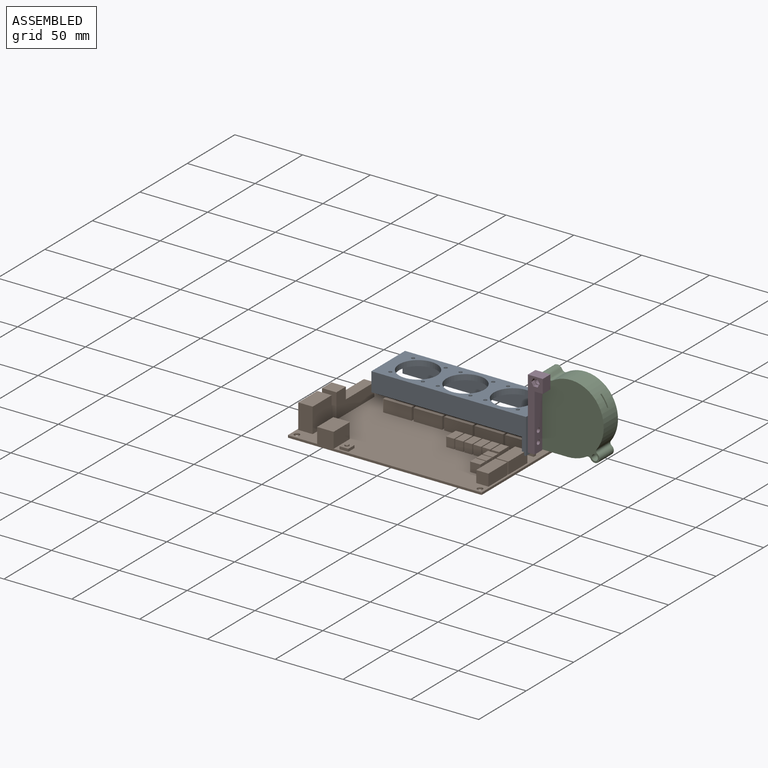
[diagram: assembled view]
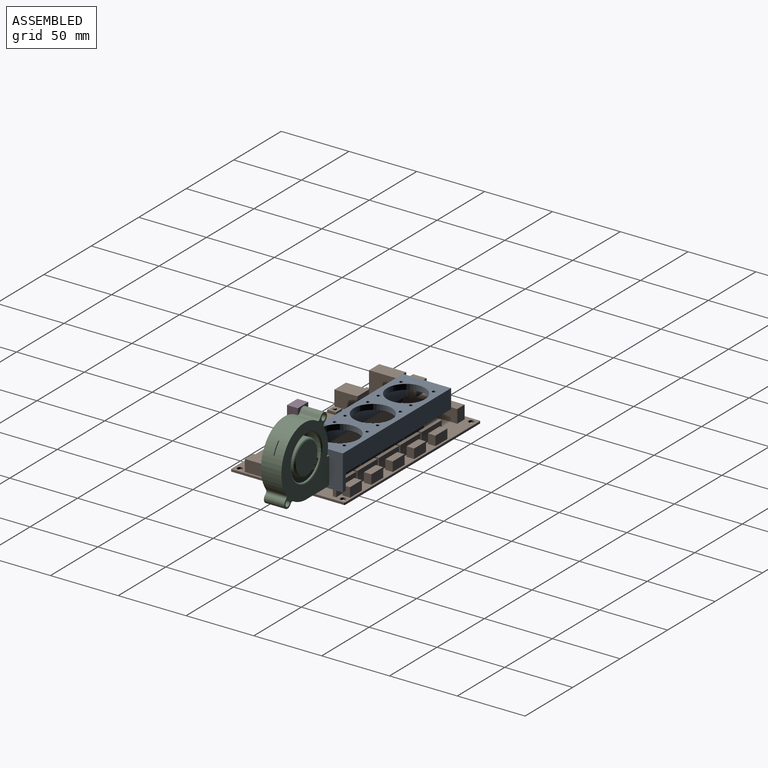
[diagram: assembled view, second angle]
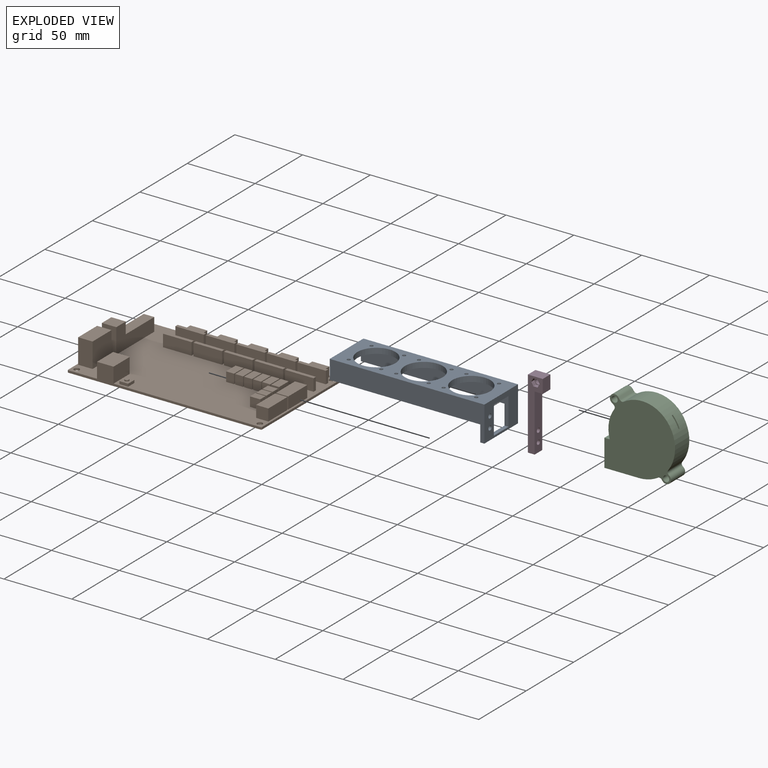
[diagram: exploded view]
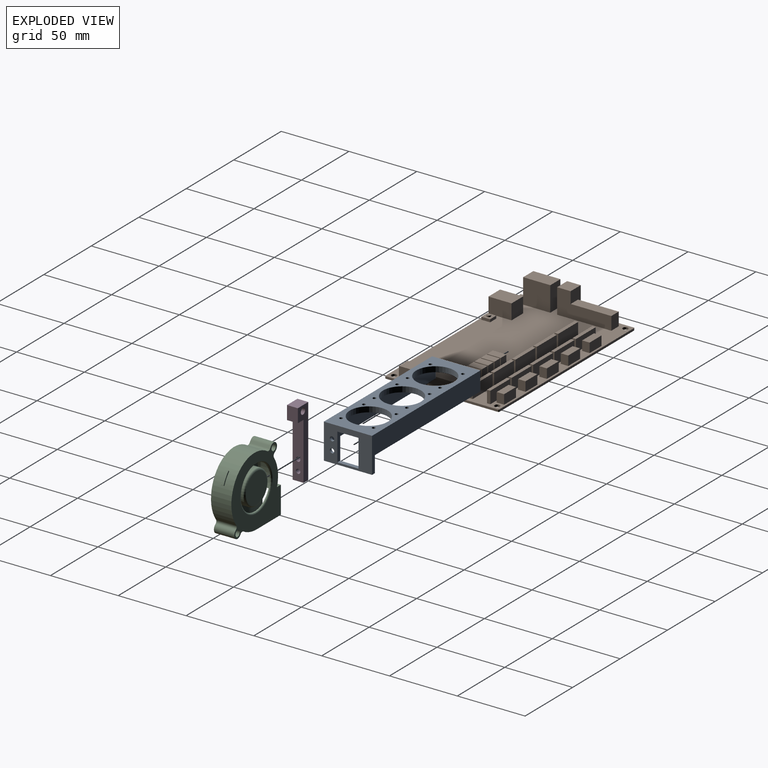
[diagram: exploded view, second angle]
ASSEMBLY  parts=4 mates=2
PART A: 46 faces, bbox 114x35.5x26 mm
  f0: cylinder r=1.65mm len=3.3mm, axis (-1,0,0), area 20.7mm2, adj f8,f45
  f1: cylinder r=1.65mm len=3.3mm, axis (-1,0,0), area 20.7mm2, adj f8,f38
  f2: plane 114x30mm, normal (0,0,-1), area 1470.3mm2, adj f3,f4,f8,f9,f10,f11,f12,f13
  f3: plane 35.5x22mm, normal (-1,0,0), area 359.6mm2, adj f2,f6,f7,f24,f25,f26,f27,f28
  f4: plane 35.5x14mm, normal (-1,0,0), area 197mm2, adj f2,f5,f6,f7,f25,f26,f27,f28
  f5: plane 114x35.5mm, normal (0,0,1), area 2140.8mm2, adj f4,f6,f7,f8,f9,f10,f11,f12
  f6: plane 114x26mm, normal (0,-1,0), area 1632mm2, adj f3,f4,f5,f8,f24,f26
  f7: plane 114x26mm, normal (0,1,0), area 1632mm2, adj f3,f4,f5,f8,f24,f28
  f8: plane 35.5x26mm, normal (1,0,0), area 588.1mm2, adj f0,f1,f2,f5,f6,f7,f24,f29
  f9: cylinder r=14mm len=28mm, axis (0,0,1), area 351.9mm2, adj f2,f5
  f10: cylinder r=1.25mm len=4mm, axis (0,0,1), area 31.4mm2, adj f2,f5
  f11: cylinder r=1.25mm len=4mm, axis (0,0,1), area 31.4mm2, adj f2,f5
  f12: cylinder r=1.25mm len=4mm, axis (0,0,1), area 31.4mm2, adj f2,f5
  f13: cylinder r=1.25mm len=4mm, axis (0,0,1), area 31.4mm2, adj f2,f5
  f14: cylinder r=1.25mm len=4mm, axis (0,0,1), area 31.4mm2, adj f2,f5
  f15: cylinder r=1.25mm len=4mm, axis (0,0,1), area 31.4mm2, adj f2,f5
  f16: cylinder r=14mm len=28mm, axis (0,0,1), area 351.9mm2, adj f2,f5
  f17: cylinder r=14mm len=28mm, axis (0,0,1), area 351.9mm2, adj f2,f5
  f18: cylinder r=1.25mm len=4mm, axis (0,0,1), area 31.4mm2, adj f2,f5
  f19: cylinder r=1.25mm len=4mm, axis (0,0,1), area 31.4mm2, adj f2,f5
  f20: cylinder r=1.25mm len=4mm, axis (0,0,1), area 31.4mm2, adj f2,f5
  f21: cylinder r=1.25mm len=4mm, axis (0,0,1), area 31.4mm2, adj f2,f5
  f22: cylinder r=1.25mm len=4mm, axis (0,0,1), area 31.4mm2, adj f2,f5
  f23: cylinder r=1.25mm len=4mm, axis (0,0,1), area 31.4mm2, adj f2,f5
  f24: plane 35.5x3mm, normal (0,0,-1), area 106.5mm2, adj f3,f6,f7,f8
  f25: plane 111x10mm, normal (0,1,0), area 1110mm2, adj f2,f3,f4,f26
  f26: plane 111x2.75mm, normal (0,0,-1), area 305.3mm2, adj f3,f4,f6,f25
  f27: plane 111x10mm, normal (0,-1,0), area 1110mm2, adj f2,f3,f4,f28
  f28: plane 111x2.75mm, normal (0,0,-1), area 305.2mm2, adj f3,f4,f7,f27
  f29: plane 20.5x3mm, normal (0,-1,0), area 61.5mm2, adj f2,f3,f8,f30
  f30: plane 15.5x3mm, normal (0,0,1), area 46.5mm2, adj f3,f8,f29,f31
  f31: plane 20.5x3mm, normal (0,1,0), area 61.5mm2, adj f2,f3,f8,f30
  f32: plane 2.65x1.53mm, normal (0,-0.87,0.5), area 3.1mm2, adj f3,f33,f37,f38
  f33: plane 3.06x1mm, normal (0,0,1), area 3.1mm2, adj f3,f32,f34,f38
  f34: plane 2.65x1.53mm, normal (0,0.87,0.5), area 3.1mm2, adj f3,f33,f35,f38
  f35: plane 2.65x1.53mm, normal (0,0.87,-0.5), area 3.1mm2, adj f3,f34,f36,f38
  f36: plane 3.06x1mm, normal (0,0,-1), area 3.1mm2, adj f3,f35,f37,f38
  f37: plane 2.65x1.53mm, normal (0,-0.87,-0.5), area 3.1mm2, adj f3,f32,f36,f38
  f38: plane 6.12x5.3mm, normal (-1,0,0), area 15.8mm2, adj f1,f32,f33,f34,f35,f36,f37
  f39: plane 2.65x1.53mm, normal (0,-0.87,0.5), area 3.1mm2, adj f3,f40,f44,f45
  f40: plane 3.06x1mm, normal (0,0,1), area 3.1mm2, adj f3,f39,f41,f45
  f41: plane 2.65x1.53mm, normal (0,0.87,0.5), area 3.1mm2, adj f3,f40,f42,f45
  f42: plane 2.65x1.53mm, normal (0,0.87,-0.5), area 3.1mm2, adj f3,f41,f43,f45
  f43: plane 3.06x1mm, normal (0,0,-1), area 3.1mm2, adj f3,f42,f44,f45
  f44: plane 2.65x1.53mm, normal (0,-0.87,-0.5), area 3.1mm2, adj f3,f39,f43,f45
  f45: plane 6.12x5.3mm, normal (-1,0,0), area 15.8mm2, adj f0,f39,f40,f41,f42,f43,f44
PART B: 168 faces, bbox 143x84x19.9 mm
  f0: plane 143x84mm, normal (0,0,1), area 9452.7mm2, adj f1,f6,f8,f9,f10,f11,f12,f13
  f1: plane 9x2.5mm, normal (-1,0,0), area 22.5mm2, adj f0,f39,f42,f118
  f2: plane 21x2.5mm, normal (0,0,1), area 52.5mm2, adj f8,f40,f41,f117
  f3: plane 21x2.5mm, normal (0,0,1), area 52.5mm2, adj f9,f10,f45,f115
  f4: plane 21x2.5mm, normal (0,0,1), area 52.5mm2, adj f11,f12,f50,f113
  f5: plane 21x2.5mm, normal (0,0,1), area 52.5mm2, adj f13,f14,f55,f111
  f6: plane 9x2.5mm, normal (1,0,0), area 22.5mm2, adj f0,f7,f60,f109
  f7: plane 21x2.5mm, normal (0,0,1), area 52.5mm2, adj f6,f15,f60,f109
  f8: plane 9x2.5mm, normal (1,0,0), area 22.5mm2, adj f0,f2,f41,f117
  f9: plane 9x2.5mm, normal (-1,0,0), area 22.5mm2, adj f0,f3,f45,f115
  f10: plane 9x2.5mm, normal (1,0,0), area 22.5mm2, adj f0,f3,f45,f115
  f11: plane 9x2.5mm, normal (-1,0,0), area 22.5mm2, adj f0,f4,f50,f113
  f12: plane 9x2.5mm, normal (1,0,0), area 22.5mm2, adj f0,f4,f50,f113
  f13: plane 9x2.5mm, normal (-1,0,0), area 22.5mm2, adj f0,f5,f55,f111
  f14: plane 9x2.5mm, normal (1,0,0), area 22.5mm2, adj f0,f5,f55,f111
  f15: plane 9x2.5mm, normal (-1,0,0), area 22.5mm2, adj f0,f7,f60,f109
  f16: plane 141.8x12.92mm, normal (0,-1,0), area 367.6mm2, adj f0,f24,f88,f89,f91,f164,f167
  f17: plane 82.8x1.62mm, normal (1,0,0), area 134.1mm2, adj f0,f24,f164,f165
  f18: plane 141.8x1.62mm, normal (0,1,0), area 229.7mm2, adj f0,f24,f165,f166
  f19: cylinder r=2mm len=4mm, axis (0,0,-1), area 20.4mm2, adj f0,f24
  f20: cylinder r=2mm len=4mm, axis (0,0,-1), area 20.4mm2, adj f0,f24
  f21: cylinder r=2mm len=4mm, axis (0,0,-1), area 20.4mm2, adj f0,f24
  f22: plane 82.8x1.62mm, normal (-1,0,0), area 134.1mm2, adj f0,f24,f166,f167
  f23: cylinder r=2mm len=4mm, axis (0,0,-1), area 20.4mm2, adj f0,f24
  f24: plane 143x84mm, normal (0,0,-1), area 11961.4mm2, adj f16,f17,f18,f19,f20,f21,f22,f23
  f25: plane 20x18.3mm, normal (1,0,0), area 366mm2, adj f0,f26,f28,f29
  f26: plane 18.3x10.62mm, normal (0,1,0), area 194.3mm2, adj f0,f25,f27,f29
  f27: plane 20x18.3mm, normal (-1,0,0), area 366mm2, adj f0,f26,f28,f29
  f28: plane 18.3x10.62mm, normal (0,-1,0), area 194.3mm2, adj f0,f25,f27,f29
  f29: plane 20x10.62mm, normal (0,0,1), area 212.4mm2, adj f25,f26,f27,f28
  f30: plane 18.3x10.62mm, normal (0,-1,0), area 194.3mm2, adj f0,f31,f33,f34
  f31: plane 40x18.3mm, normal (1,0,0), area 477mm2, adj f0,f30,f32,f34,f35,f37
  f32: plane 18.3x10.62mm, normal (0,1,0), area 118.4mm2, adj f0,f31,f33,f34,f36,f37
  f33: plane 18.3x10mm, normal (-1,0,0), area 183mm2, adj f0,f30,f32,f34
  f34: plane 10.62x10mm, normal (0,0,1), area 106.2mm2, adj f30,f31,f32,f33
  f35: plane 9.8x7.75mm, normal (0,1,0), area 76mm2, adj f0,f31,f36,f37
  f36: plane 30x9.8mm, normal (-1,0,0), area 294mm2, adj f0,f32,f35,f37
  f37: plane 30x7.75mm, normal (0,0,1), area 232.5mm2, adj f31,f32,f35,f36
  f38: plane 9x2.5mm, normal (1,0,0), area 22.5mm2, adj f0,f39,f42,f118
  f39: plane 21x9mm, normal (0,1,0), area 189mm2, adj f0,f1,f38,f42
  f40: plane 9x2.5mm, normal (-1,0,0), area 22.5mm2, adj f0,f2,f41,f117
  f41: plane 21x9mm, normal (0,-1,0), area 189mm2, adj f0,f2,f8,f40
  f42: plane 21x2.5mm, normal (0,0,1), area 52.5mm2, adj f1,f38,f39,f118
  f43: plane 21x9mm, normal (0,1,0), area 189mm2, adj f0,f44,f46,f47
  f44: plane 9x2.5mm, normal (-1,0,0), area 22.5mm2, adj f0,f43,f47,f116
  f45: plane 21x9mm, normal (0,-1,0), area 189mm2, adj f0,f3,f9,f10
  f46: plane 9x2.5mm, normal (1,0,0), area 22.5mm2, adj f0,f43,f47,f116
  f47: plane 21x2.5mm, normal (0,0,1), area 52.5mm2, adj f43,f44,f46,f116
  f48: plane 21x9mm, normal (0,1,0), area 189mm2, adj f0,f49,f51,f52
  f49: plane 9x2.5mm, normal (-1,0,0), area 22.5mm2, adj f0,f48,f52,f114
  f50: plane 21x9mm, normal (0,-1,0), area 189mm2, adj f0,f4,f11,f12
  f51: plane 9x2.5mm, normal (1,0,0), area 22.5mm2, adj f0,f48,f52,f114
  f52: plane 21x2.5mm, normal (0,0,1), area 52.5mm2, adj f48,f49,f51,f114
  f53: plane 21x9mm, normal (0,1,0), area 189mm2, adj f0,f54,f56,f57
  f54: plane 9x2.5mm, normal (-1,0,0), area 22.5mm2, adj f0,f53,f57,f112
  f55: plane 21x9mm, normal (0,-1,0), area 189mm2, adj f0,f5,f13,f14
  f56: plane 9x2.5mm, normal (1,0,0), area 22.5mm2, adj f0,f53,f57,f112
  f57: plane 21x2.5mm, normal (0,0,1), area 52.5mm2, adj f53,f54,f56,f112
  f58: plane 21x9mm, normal (0,1,0), area 189mm2, adj f0,f59,f61,f62
  f59: plane 9x2.5mm, normal (-1,0,0), area 22.5mm2, adj f0,f58,f62,f110
  f60: plane 21x9mm, normal (0,-1,0), area 189mm2, adj f0,f6,f7,f15
  f61: plane 9x2.5mm, normal (1,0,0), area 22.5mm2, adj f0,f58,f62,f110
  f62: plane 21x2.5mm, normal (0,0,1), area 52.5mm2, adj f58,f59,f61,f110
  f63: plane 7x5.5mm, normal (-1,0,0), area 38.5mm2, adj f0,f64,f66,f67
  f64: plane 12.5x7mm, normal (0,-1,0), area 87.5mm2, adj f0,f63,f65,f67
  f65: plane 7x5.5mm, normal (1,0,0), area 38.5mm2, adj f0,f64,f66,f67
  f66: plane 12.5x7mm, normal (0,1,0), area 87.5mm2, adj f0,f63,f65,f67
  f67: plane 12.5x5.5mm, normal (0,0,1), area 68.7mm2, adj f63,f64,f65,f66
  f68: plane 7x5.5mm, normal (1,0,0), area 38.5mm2, adj f0,f69,f71,f72
  f69: plane 12.5x7mm, normal (0,1,0), area 87.5mm2, adj f0,f68,f70,f72
  f70: plane 7x5.5mm, normal (-1,0,0), area 38.5mm2, adj f0,f69,f71,f72
  f71: plane 12.5x7mm, normal (0,-1,0), area 87.5mm2, adj f0,f68,f70,f72
  f72: plane 12.5x5.5mm, normal (0,0,1), area 68.7mm2, adj f68,f69,f70,f71
  f73: plane 12.5x7mm, normal (0,1,0), area 87.5mm2, adj f0,f74,f76,f77
  f74: plane 7x5.5mm, normal (-1,0,0), area 38.5mm2, adj f0,f73,f75,f77
  f75: plane 12.5x7mm, normal (0,-1,0), area 87.5mm2, adj f0,f74,f76,f77
  f76: plane 7x5.5mm, normal (1,0,0), area 38.5mm2, adj f0,f73,f75,f77
  f77: plane 12.5x5.5mm, normal (0,0,1), area 68.7mm2, adj f73,f74,f75,f76
  f78: plane 12.5x7mm, normal (0,-1,0), area 87.5mm2, adj f0,f79,f81,f82
  f79: plane 7x5.5mm, normal (1,0,0), area 38.5mm2, adj f0,f78,f80,f82
  f80: plane 12.5x7mm, normal (0,1,0), area 87.5mm2, adj f0,f79,f81,f82
  f81: plane 7x5.5mm, normal (-1,0,0), area 38.5mm2, adj f0,f78,f80,f82
  f82: plane 12.5x5.5mm, normal (0,0,1), area 68.7mm2, adj f78,f79,f80,f81
  f83: plane 12.5x7mm, normal (0,1,0), area 87.5mm2, adj f0,f84,f86,f87
  f84: plane 7x5.5mm, normal (-1,0,0), area 38.5mm2, adj f0,f83,f85,f87
  f85: plane 12.5x7mm, normal (0,-1,0), area 87.5mm2, adj f0,f84,f86,f87
  f86: plane 7x5.5mm, normal (1,0,0), area 38.5mm2, adj f0,f83,f85,f87
  f87: plane 12.5x5.5mm, normal (0,0,1), area 68.7mm2, adj f83,f84,f85,f86
  f88: plane 17x11.3mm, normal (-1,0,0), area 192.1mm2, adj f0,f16,f90,f91
  f89: plane 17x11.3mm, normal (1,0,0), area 192.1mm2, adj f0,f16,f90,f91
  f90: plane 12.2x11.3mm, normal (0,1,0), area 137.9mm2, adj f0,f88,f89,f91
  f91: plane 17x12.2mm, normal (0,0,1), area 207.4mm2, adj f16,f88,f89,f90
  f92: plane 6.5x2mm, normal (-1,0,0), area 13mm2, adj f0,f93,f95,f96
  f93: plane 6.5x2mm, normal (0,-1,0), area 13mm2, adj f0,f92,f94,f96
  f94: plane 6.5x2mm, normal (1,0,0), area 13mm2, adj f0,f93,f95,f96
  f95: plane 6.5x2mm, normal (0,1,0), area 13mm2, adj f0,f92,f94,f96
  f96: plane 6.5x6.5mm, normal (0,0,1), area 35.2mm2, adj f92,f93,f94,f95,f97
  f97: cylinder r=1.5mm len=3mm, axis (0,0,-1), area 9.4mm2, adj f96,f98
  f98: plane 3x3mm, normal (0,0,1), area 7.1mm2, adj f97
  f99: plane 9x8.66mm, normal (0,1,0), area 77.9mm2, adj f0,f100,f102,f103
  f100: plane 20x8.66mm, normal (-1,0,0), area 173.2mm2, adj f0,f99,f101,f103
  f101: plane 9x8.66mm, normal (0,-1,0), area 77.9mm2, adj f0,f100,f102,f103
  f102: plane 20x8.66mm, normal (1,0,0), area 173.2mm2, adj f0,f99,f101,f103
  f103: plane 20x9mm, normal (0,0,1), area 180mm2, adj f99,f100,f101,f102
  f104: plane 20x8.66mm, normal (1,0,0), area 173.2mm2, adj f0,f105,f107,f108
  f105: plane 9x8.66mm, normal (0,1,0), area 77.9mm2, adj f0,f104,f106,f108
  f106: plane 20x8.66mm, normal (-1,0,0), area 173.2mm2, adj f0,f105,f107,f108
  f107: plane 9x8.66mm, normal (0,-1,0), area 77.9mm2, adj f0,f104,f106,f108
  f108: plane 20x9mm, normal (0,0,1), area 180mm2, adj f104,f105,f106,f107
  f109: plane 21x9mm, normal (0,1,0), area 189mm2, adj f0,f6,f7,f15
  f110: plane 21x9mm, normal (0,-1,0), area 189mm2, adj f0,f59,f61,f62
  f111: plane 21x9mm, normal (0,1,0), area 189mm2, adj f0,f5,f13,f14
  f112: plane 21x9mm, normal (0,-1,0), area 189mm2, adj f0,f54,f56,f57
  f113: plane 21x9mm, normal (0,1,0), area 189mm2, adj f0,f4,f11,f12
  f114: plane 21x9mm, normal (0,-1,0), area 189mm2, adj f0,f49,f51,f52
  f115: plane 21x9mm, normal (0,1,0), area 189mm2, adj f0,f3,f9,f10
  f116: plane 21x9mm, normal (0,-1,0), area 189mm2, adj f0,f44,f46,f47
  f117: plane 21x9mm, normal (0,1,0), area 189mm2, adj f0,f2,f8,f40
  f118: plane 21x9mm, normal (0,-1,0), area 189mm2, adj f0,f1,f38,f42
  f119: plane 7x5.85mm, normal (0,-1,0), area 41mm2, adj f0,f120,f122,f123
  f120: plane 10x7mm, normal (1,0,0), area 70mm2, adj f0,f119,f121,f123
  f121: plane 7x5.85mm, normal (0,1,0), area 41mm2, adj f0,f120,f122,f123
  f122: plane 10x7mm, normal (-1,0,0), area 70mm2, adj f0,f119,f121,f123
  f123: plane 10x5.85mm, normal (0,0,1), area 58.5mm2, adj f119,f120,f121,f122
  f124: plane 10x7mm, normal (-1,0,0), area 70mm2, adj f0,f125,f127,f128
  f125: plane 7x5.85mm, normal (0,-1,0), area 41mm2, adj f0,f124,f126,f128
  f126: plane 10x7mm, normal (1,0,0), area 70mm2, adj f0,f125,f127,f128
  f127: plane 7x5.85mm, normal (0,1,0), area 41mm2, adj f0,f124,f126,f128
  f128: plane 10x5.85mm, normal (0,0,1), area 58.5mm2, adj f124,f125,f126,f127
  f129: plane 10x7mm, normal (-1,0,0), area 70mm2, adj f0,f130,f132,f133
  f130: plane 7x5.85mm, normal (0,-1,0), area 41mm2, adj f0,f129,f131,f133
  f131: plane 10x7mm, normal (1,0,0), area 70mm2, adj f0,f130,f132,f133
  f132: plane 7x5.85mm, normal (0,1,0), area 41mm2, adj f0,f129,f131,f133
  f133: plane 10x5.85mm, normal (0,0,1), area 58.5mm2, adj f129,f130,f131,f132
  f134: plane 10x7mm, normal (-1,0,0), area 70mm2, adj f0,f135,f137,f138
  f135: plane 7x5.85mm, normal (0,-1,0), area 41mm2, adj f0,f134,f136,f138
  f136: plane 10x7mm, normal (1,0,0), area 70mm2, adj f0,f135,f137,f138
  f137: plane 7x5.85mm, normal (0,1,0), area 41mm2, adj f0,f134,f136,f138
  f138: plane 10x5.85mm, normal (0,0,1), area 58.5mm2, adj f134,f135,f136,f137
  f139: plane 10x7mm, normal (1,0,0), area 70mm2, adj f0,f140,f142,f143
  f140: plane 7x5.85mm, normal (0,1,0), area 41mm2, adj f0,f139,f141,f143
  f141: plane 10x7mm, normal (-1,0,0), area 70mm2, adj f0,f140,f142,f143
  f142: plane 7x5.85mm, normal (0,-1,0), area 41mm2, adj f0,f139,f141,f143
  f143: plane 10x5.85mm, normal (0,0,1), area 58.5mm2, adj f139,f140,f141,f142
  f144: plane 10x7mm, normal (-1,0,0), area 70mm2, adj f0,f145,f147,f148
  f145: plane 7x5.85mm, normal (0,-1,0), area 41mm2, adj f0,f144,f146,f148
  f146: plane 10x7mm, normal (1,0,0), area 70mm2, adj f0,f145,f147,f148
  f147: plane 7x5.85mm, normal (0,1,0), area 41mm2, adj f0,f144,f146,f148
  f148: plane 10x5.85mm, normal (0,0,1), area 58.5mm2, adj f144,f145,f146,f147
  f149: plane 7.5x7mm, normal (0,1,0), area 52.5mm2, adj f0,f150,f152,f153
  f150: plane 7x5.7mm, normal (-1,0,0), area 39.9mm2, adj f0,f149,f151,f153
  f151: plane 7.5x7mm, normal (0,-1,0), area 52.5mm2, adj f0,f150,f152,f153
  f152: plane 7x5.7mm, normal (1,0,0), area 39.9mm2, adj f0,f149,f151,f153
  f153: plane 7.5x5.7mm, normal (0,0,1), area 42.7mm2, adj f149,f150,f151,f152
  f154: plane 7x5.7mm, normal (1,0,0), area 39.9mm2, adj f0,f155,f157,f158
  f155: plane 7.5x7mm, normal (0,1,0), area 52.5mm2, adj f0,f154,f156,f158
  f156: plane 7x5.7mm, normal (-1,0,0), area 39.9mm2, adj f0,f155,f157,f158
  f157: plane 7.5x7mm, normal (0,-1,0), area 52.5mm2, adj f0,f154,f156,f158
  f158: plane 7.5x5.7mm, normal (0,0,1), area 42.7mm2, adj f154,f155,f156,f157
  f159: plane 7x5.7mm, normal (-1,0,0), area 39.9mm2, adj f0,f160,f162,f163
  f160: plane 7.5x7mm, normal (0,-1,0), area 52.5mm2, adj f0,f159,f161,f163
  f161: plane 7x5.7mm, normal (1,0,0), area 39.9mm2, adj f0,f160,f162,f163
  f162: plane 7.5x7mm, normal (0,1,0), area 52.5mm2, adj f0,f159,f161,f163
  f163: plane 7.5x5.7mm, normal (0,0,1), area 42.7mm2, adj f159,f160,f161,f162
  f164: cylinder r=0.6mm len=1.62mm, axis (0,0,1), area 1.5mm2, adj f0,f16,f17,f24
  f165: cylinder r=0.6mm len=1.62mm, axis (0,0,-1), area 1.5mm2, adj f0,f17,f18,f24
  f166: cylinder r=0.6mm len=1.62mm, axis (0,0,1), area 1.5mm2, adj f0,f18,f22,f24
  f167: cylinder r=0.6mm len=1.62mm, axis (0,0,-1), area 1.5mm2, adj f0,f16,f22,f24
PART C: 58 faces, bbox 52.2x52.9x15 mm
  f0: cylinder r=23.91mm len=22.39mm, axis (0,0,-1), area 383.6mm2, adj f1,f5,f21,f22,f48,f51,f52
  f1: cylinder r=26.57mm len=30.12mm, axis (0,0,-1), area 471.2mm2, adj f0,f6,f21,f22,f47,f51,f52
  f2: plane 20x15mm, normal (-1,0,0), area 90.2mm2, adj f12,f13,f21,f22,f31,f32,f37,f38
  f3: cylinder r=16mm len=32mm, axis (0,0,-1), area 40.2mm2, adj f23,f37
  f4: cylinder r=2mm len=15mm, axis (0,0,-1), area 44.9mm2, adj f5,f20,f21,f22
  f5: cylinder r=24.93mm len=15mm, axis (0,0,-1), area 182.5mm2, adj f0,f4,f21,f22
  f6: cylinder r=2mm len=15mm, axis (0,0,-1), area 45mm2, adj f1,f7,f21,f22
  f7: plane 15x0.62mm, normal (0.65,-0.76,0), area 12.3mm2, adj f6,f8,f21,f22
  f8: cylinder r=3.5mm len=15mm, axis (0,0,-1), area 177.4mm2, adj f7,f9,f21,f22
  f9: plane 15x0.66mm, normal (-0.81,0.59,0), area 12.3mm2, adj f8,f10,f21,f22
  f10: cylinder r=2mm len=15mm, axis (0,0,-1), area 45mm2, adj f9,f11,f21,f22
  f11: cylinder r=26.57mm len=15mm, axis (0,0,-1), area 221.3mm2, adj f10,f12,f21,f22
  f12: plane 25.6x15mm, normal (0,1,0), area 365.2mm2, adj f2,f11,f21,f22,f53,f54,f56,f57
  f13: plane 15x4mm, normal (0,-1,0), area 60mm2, adj f2,f14,f21,f22
  f14: cylinder r=24.93mm len=21.02mm, axis (0,0,-1), area 310.9mm2, adj f13,f15,f21,f22,f42,f44,f45,f46
  f15: cylinder r=2mm len=15mm, axis (0,0,-1), area 44.9mm2, adj f14,f16,f21,f22
  f16: plane 15x1.51mm, normal (-0.62,0.78,0), area 29mm2, adj f15,f17,f21,f22
  f17: cylinder r=3.5mm len=15mm, axis (0,0,-1), area 177.6mm2, adj f16,f20,f21,f22
  f18: cylinder r=2.25mm len=15mm, axis (0,0,-1), area 212.1mm2, adj f21,f22
  f19: cylinder r=2.25mm len=15mm, axis (0,0,-1), area 212.1mm2, adj f21,f22
  f20: plane 15x1.53mm, normal (0.79,-0.61,0), area 29mm2, adj f4,f17,f21,f22
  f21: plane 52.17x51.91mm, normal (0,0,1), area 1342.9mm2, adj f0,f1,f2,f4,f5,f6,f7,f8
  f22: plane 52.17x51.91mm, normal (0,0,-1), area 2250.8mm2, adj f0,f1,f2,f4,f5,f6,f7,f8
  f23: torus R=17mm, axis (0,0,1), area 161.5mm2, adj f3,f21
  f24: cylinder r=3.4mm len=12.2mm, axis (0,0,-1), area 50.3mm2, adj f25,f35,f37,f38
  f25: cylinder r=23.53mm len=12.2mm, axis (0,0,-1), area 140.1mm2, adj f24,f26,f37,f38
  f26: cylinder r=22.51mm len=21.08mm, axis (0,0,-1), area 301mm2, adj f25,f27,f37,f38
  f27: cylinder r=25.17mm len=28.53mm, axis (0,0,-1), area 370.3mm2, adj f26,f28,f37,f38
  f28: cylinder r=3.4mm len=12.2mm, axis (0,0,-1), area 39.7mm2, adj f27,f36,f37,f38
  f29: cylinder r=3.4mm len=12.2mm, axis (0,0,-1), area 39.7mm2, adj f30,f36,f37,f38
  f30: cylinder r=25.17mm len=13.27mm, axis (0,0,-1), area 170.5mm2, adj f29,f31,f37,f38
  f31: plane 25.6x12.2mm, normal (0,-1,0), area 312.3mm2, adj f2,f30,f37,f38
  f32: plane 12.2x5.95mm, normal (0,1,0), area 72.5mm2, adj f2,f33,f37,f38
  f33: cylinder r=23.53mm len=21.63mm, axis (0,0,-1), area 276.2mm2, adj f32,f34,f37,f38
  f34: cylinder r=3.4mm len=12.2mm, axis (0,0,-1), area 50.3mm2, adj f33,f35,f37,f38
  f35: cylinder r=3.65mm len=12.2mm, axis (0,0,-1), area 48mm2, adj f24,f34,f37,f38
  f36: cylinder r=3.65mm len=12.2mm, axis (0,0,-1), area 59.6mm2, adj f28,f29,f37,f38
  f37: plane 50.77x49.11mm, normal (0,0,-1), area 1190.1mm2, adj f2,f3,f24,f25,f26,f27,f28,f29
  f38: plane 50.77x49.11mm, normal (0,0,1), area 1503.5mm2, adj f2,f24,f25,f26,f27,f28,f29,f30
  f39: cylinder r=12.5mm len=25mm, axis (0,0,-1), area 958.2mm2, adj f38,f41
  f40: plane 22.2x22.2mm, normal (0,0,1), area 387.1mm2, adj f41
  f41: torus R=11.1mm, axis (0,0,1), area 165.7mm2, adj f39,f40
  f42: plane 2x1.02mm, normal (0,1,0), area 2mm2, adj f14,f43,f45,f46
  f43: cylinder r=25.93mm len=9.4mm, axis (0,0,-1), area 18.9mm2, adj f42,f44,f45,f46
  f44: plane 2x1.02mm, normal (0,-1,0), area 2mm2, adj f14,f43,f45,f46
  f45: plane 9.4x1.46mm, normal (0,0,1), area 9.5mm2, adj f14,f42,f43,f44
  f46: plane 9.4x1.46mm, normal (0,0,-1), area 9.5mm2, adj f14,f42,f43,f44
  f47: plane 2x0.85mm, normal (0.55,0.84,0), area 2mm2, adj f1,f50,f51,f52
  f48: plane 2x0.85mm, normal (-0.55,-0.84,0), area 2mm2, adj f0,f49,f51,f52
  f49: cylinder r=24.91mm len=3.72mm, axis (0,0,-1), area 9.5mm2, adj f48,f50,f51,f52
  f50: cylinder r=27.57mm len=4.18mm, axis (0,0,-1), area 9.4mm2, adj f47,f49,f51,f52
  f51: plane 8.45x5.95mm, normal (0,0,1), area 9.5mm2, adj f0,f1,f47,f48,f49,f50
  f52: plane 8.45x5.95mm, normal (0,0,-1), area 9.5mm2, adj f0,f1,f47,f48,f49,f50
  f53: plane 2x1mm, normal (-1,0,0), area 2mm2, adj f12,f55,f56,f57
  f54: plane 2x1mm, normal (1,0,0), area 2mm2, adj f12,f55,f56,f57
  f55: plane 9.4x2mm, normal (0,1,0), area 18.8mm2, adj f53,f54,f56,f57
  f56: plane 9.4x1mm, normal (0,0,1), area 9.4mm2, adj f12,f53,f54,f55
  f57: plane 9.4x1mm, normal (0,0,-1), area 9.4mm2, adj f12,f53,f54,f55
PART D: 18 faces, bbox 11x8x52 mm
  f0: cylinder r=2.25mm len=5mm, axis (0,-1,0), area 70.7mm2, adj f3,f15
  f1: plane 52x11mm, normal (0,-1,0), area 295.7mm2, adj f2,f4,f5,f6,f7,f8,f9,f10
  f2: plane 8x5mm, normal (0,0,-1), area 40mm2, adj f1,f3,f5,f6
  f3: plane 52x11mm, normal (0,1,0), area 304.1mm2, adj f0,f2,f4,f5,f6,f7,f8
  f4: plane 11x8mm, normal (0,0,1), area 88mm2, adj f1,f3,f6,f8
  f5: plane 42x8mm, normal (1,0,0), area 318.9mm2, adj f1,f2,f3,f7,f16,f17
  f6: plane 52x8mm, normal (-1,0,0), area 398.9mm2, adj f1,f2,f3,f4,f16,f17
  f7: plane 8x6mm, normal (0,0,-1), area 48mm2, adj f1,f3,f5,f8
  f8: plane 10x8mm, normal (1,0,0), area 80mm2, adj f1,f3,f4,f7
  f9: plane 3x2.65mm, normal (0.87,0,0.5), area 9.2mm2, adj f1,f10,f14,f15
  f10: plane 3.06x3mm, normal (0,0,1), area 9.2mm2, adj f1,f9,f11,f15
  f11: plane 3x2.65mm, normal (-0.87,0,0.5), area 9.2mm2, adj f1,f10,f12,f15
  f12: plane 3x2.65mm, normal (-0.87,0,-0.5), area 9.2mm2, adj f1,f11,f13,f15
  f13: plane 3.06x3mm, normal (0,0,-1), area 9.2mm2, adj f1,f12,f14,f15
  f14: plane 3x2.65mm, normal (0.87,0,-0.5), area 9.2mm2, adj f1,f9,f13,f15
  f15: plane 6.12x5.3mm, normal (0,-1,0), area 8.4mm2, adj f0,f9,f10,f11,f12,f13,f14
  f16: cylinder r=1.65mm len=5mm, axis (1,0,0), area 51.8mm2, adj f5,f6
  f17: cylinder r=1.65mm len=5mm, axis (1,0,0), area 51.8mm2, adj f5,f6
PLACE A t=(-42.7,15,30)mm
PLACE B at identity fixed
PLACE C rot(axis=(-1,0,0),90deg) t=(93.95,15.25,35.06)mm
PLACE D t=(-42.7,15,30)mm
MATE fastened A.f1 <-> D.f16  axis (1,0,0) through (71.3,11,24.15)mm
MATE fastened C.f2 <-> A.f45  axis (-1,0,0) through (69.3,22.75,19.75)mm
